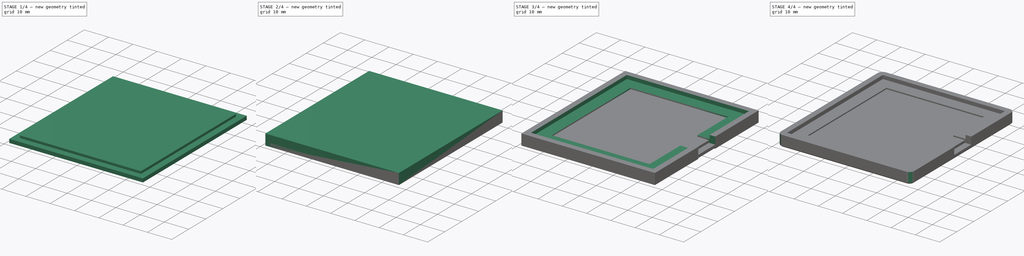
[diagram: build sequence overview — one tinted view per stage of 4, left to right]
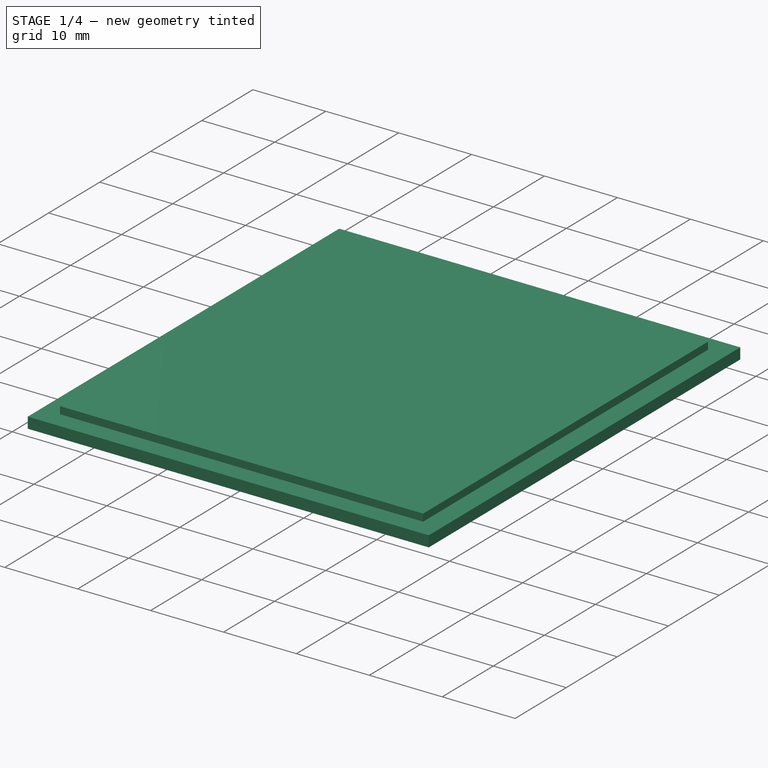
[diagram: stage 1 of 4 — iso view after this stage's code; geometry added in this stage tinted green]
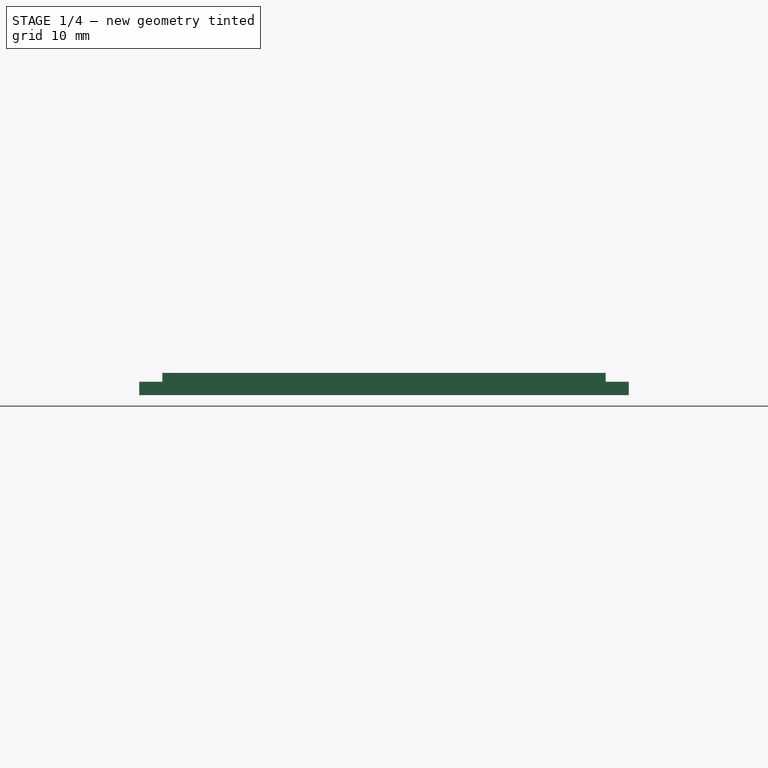
[diagram: stage 1 of 4 — front view after this stage's code; geometry added in this stage tinted green]
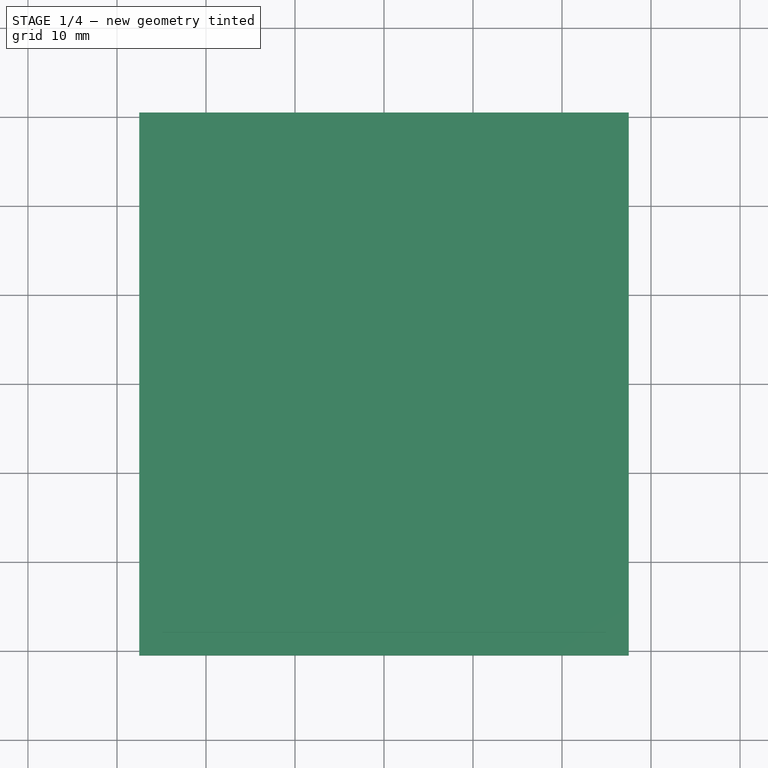
[diagram: stage 1 of 4 — top view after this stage's code; geometry added in this stage tinted green]
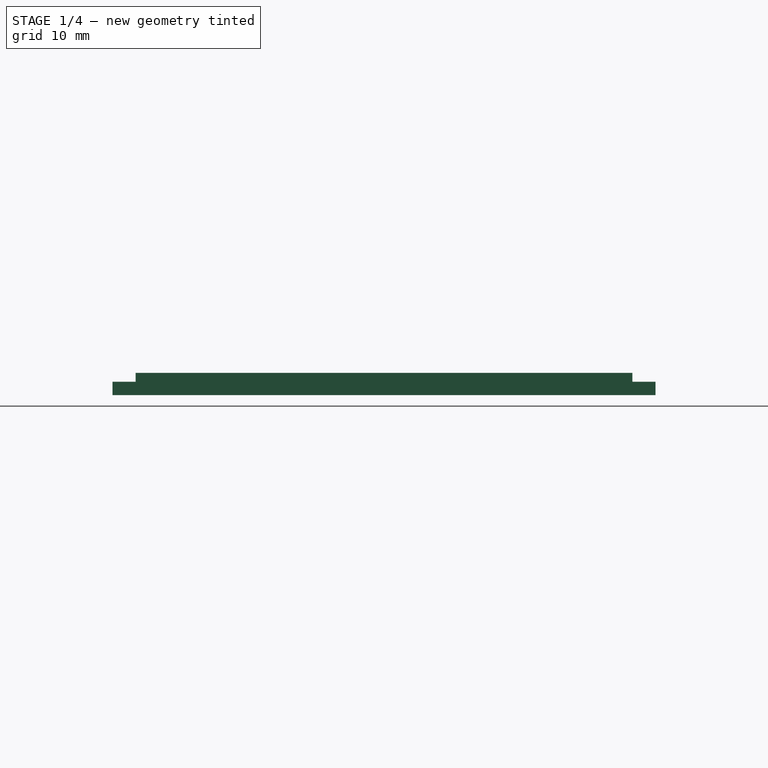
[diagram: stage 1 of 4 — right view after this stage's code; geometry added in this stage tinted green]
FCSTD DOCUMENT  (FreeCAD 0.21R33675 (Git))
Label: tencil-jig
License: All rights reserved
LicenseURL: http://en.wikipedia.org/wiki/All_rights_reserved
objects: Sketcher::SketchObject×6, PartDesign::Pad×3, PartDesign::Pocket×3, PartDesign::Fillet×2, PartDesign::Chamfer×2, PartDesign::Body×2, Spreadsheet::Sheet×1
note: 28 computed .brp shape members not serialized (recipe doc carries the construction recipe); baked Part::Feature solids carry a one-line shape summary decoded from their .brp

FEATURE [PartDesign::Body] Body  label="bottom"
  Group = -> [Sketch,Pad,Sketch001,Pocket,Sketch002,Pocket001,Sketch003,Pocket002,Fillet,Chamfer]
  Origin = -> Origin
  Tip = -> Chamfer
FEATURE [Sketcher::SketchObject] Sketch004
  FullyConstrained = true
  MapMode = 5
  Support = -> [XY_Plane001]
  expr: Constraints[10] = <<args>>.tencil_y + 5
  expr: Constraints[11] = (<<args>>.tencil_y + 5) / 2
  expr: Constraints[8] = <<args>>.tencil_x + 5
  expr: Constraints[9] = (<<args>>.tencil_x + 5) / 2
  sketch-geometry (4):
    g0: LineSegment StartX=-27.5 StartY=30.5 StartZ=0 EndX=27.5 EndY=30.5 EndZ=0
    g1: LineSegment StartX=27.5 StartY=30.5 StartZ=0 EndX=27.5 EndY=-30.5 EndZ=0
    g2: LineSegment StartX=27.5 StartY=-30.5 StartZ=0 EndX=-27.5 EndY=-30.5 EndZ=0
    g3: LineSegment StartX=-27.5 StartY=-30.5 StartZ=0 EndX=-27.5 EndY=30.5 EndZ=0
  constraints (12):
    c: Coincident(g0,g1)
    c: Coincident(g1,g2)
    c: Coincident(g2,g3)
    c: Coincident(g3,g0)
    c: Horizontal(g0)
    c: Horizontal(g2)
    c: Vertical(g1)
    c: Vertical(g3)
    c: DistanceX(g0,g0) = 55
    c: DistanceX(g0,g-1) = 27.5
    c: DistanceY(g1,g1) = 61
    c: DistanceY(g-1,g0) = 30.5
FEATURE [PartDesign::Pad] Pad001
  Direction = (0,0,1)
  Length = 1.5
  Length2 = 10
  Profile = -> Sketch004
  ReferenceAxis = -> Sketch004 [N_Axis]
  Type = 0
FEATURE [Sketcher::SketchObject] Sketch005
  FullyConstrained = true
  MapMode = 5
  Placement = pos=(0,0,1.5) rot=(0,0,1;0rad)
  Support = -> [Pad001]
  expr: Constraints[10] = <<args>>.tencil_y - 0.2
  expr: Constraints[11] = (<<args>>.tencil_y - 0.2) / 2
  expr: Constraints[8] = <<args>>.tencil_x - 0.2
  expr: Constraints[9] = (<<args>>.tencil_x - 0.2) / 2
  sketch-geometry (4):
    g0: LineSegment StartX=-24.9 StartY=27.9 StartZ=0 EndX=24.9 EndY=27.9 EndZ=0
    g1: LineSegment StartX=24.9 StartY=27.9 StartZ=0 EndX=24.9 EndY=-27.9 EndZ=0
    g2: LineSegment StartX=24.9 StartY=-27.9 StartZ=0 EndX=-24.9 EndY=-27.9 EndZ=0
    g3: LineSegment StartX=-24.9 StartY=-27.9 StartZ=0 EndX=-24.9 EndY=27.9 EndZ=0
  constraints (12):
    c: Coincident(g0,g1)
    c: Coincident(g1,g2)
    c: Coincident(g2,g3)
    c: Coincident(g3,g0)
    c: Horizontal(g0)
    c: Horizontal(g2)
    c: Vertical(g1)
    c: Vertical(g3)
    c: DistanceX(g0,g0) = 49.8
    c: DistanceX(g0,g-1) = 24.9
    c: DistanceY(g1,g1) = 55.8
    c: DistanceY(g-1,g0) = 27.9
FEATURE [PartDesign::Pad] Pad002
  BaseFeature = -> Pad001
  Direction = (0,0,1)
  Length = 1
  Length2 = 10
  Profile = -> Sketch005
  ReferenceAxis = -> Sketch005 [N_Axis]
  Type = 0
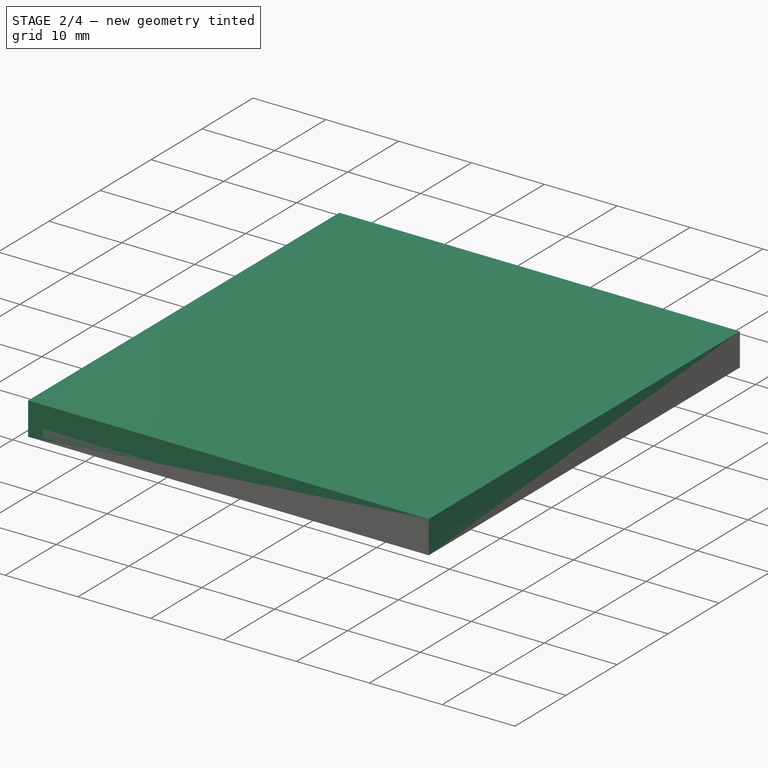
[diagram: stage 2 of 4 — iso view after this stage's code; geometry added in this stage tinted green]
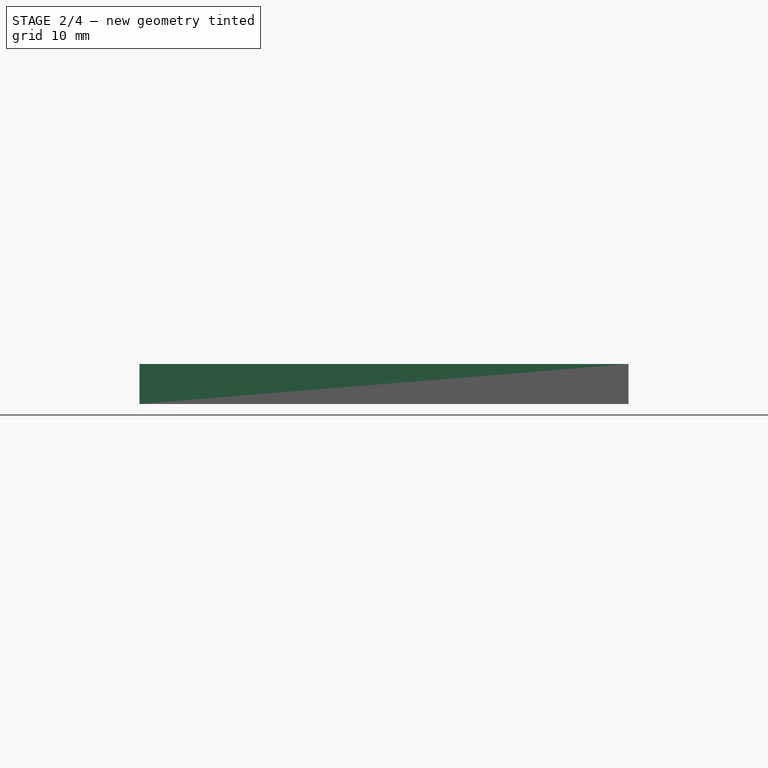
[diagram: stage 2 of 4 — front view after this stage's code; geometry added in this stage tinted green]
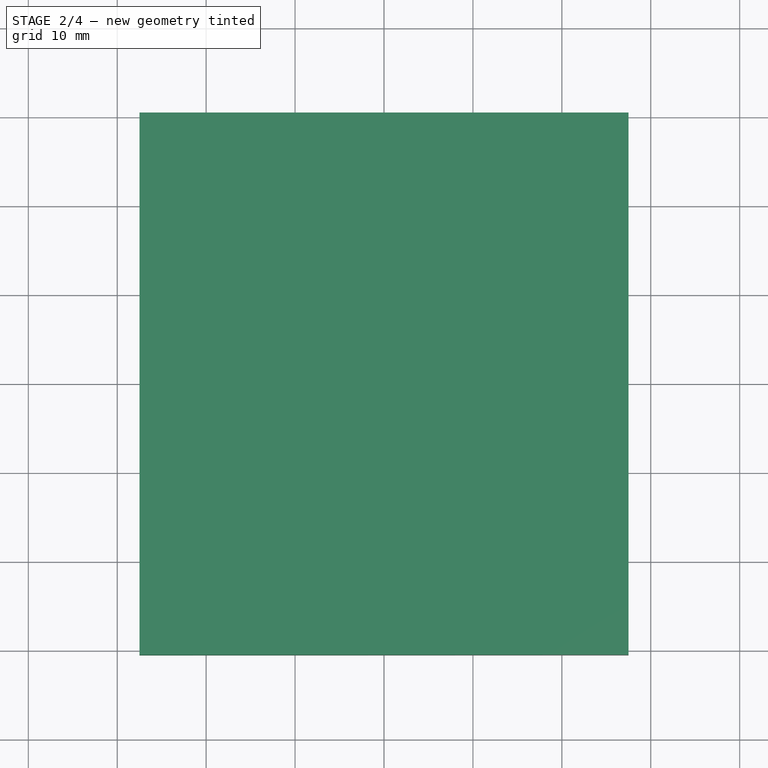
[diagram: stage 2 of 4 — top view after this stage's code; geometry added in this stage tinted green]
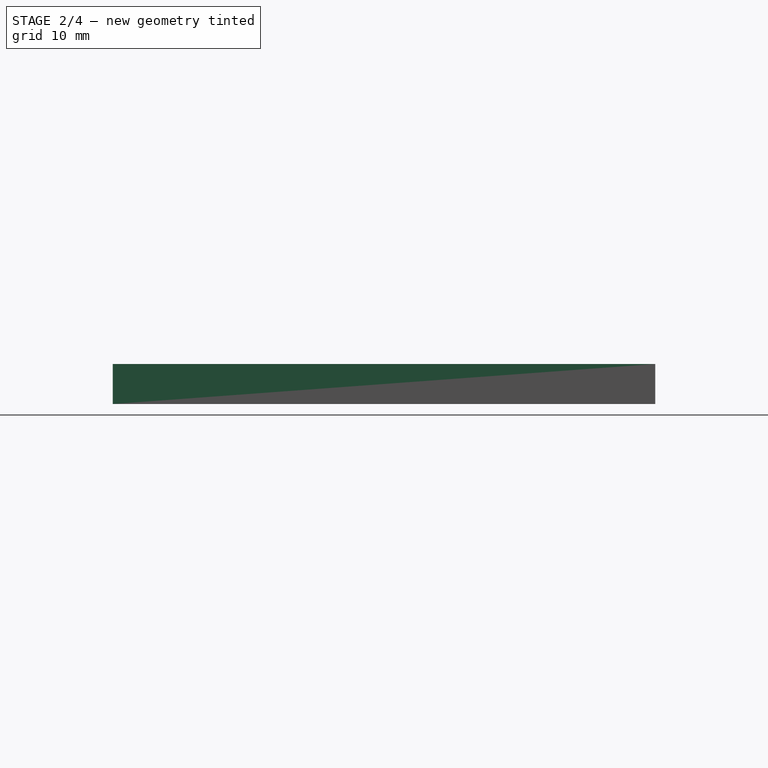
[diagram: stage 2 of 4 — right view after this stage's code; geometry added in this stage tinted green]
FEATURE [Spreadsheet::Sheet] Spreadsheet  label="args"
  cells = A3='tencil_x; B3(tencil_x)=50; A4='tencil_y; B4(tencil_y)=56; A5='tencil_offset; B5(tencil_offset)=0.3; A6='pcb_x; B6(pcb_x)=40; A7='pcb_y; B7(pcb_y)=46; A8='pcb_offset; B8(pcb_offset)=0.2; A9='cutout_radius; B9(cutout_radius)=5
FEATURE [Sketcher::SketchObject] Sketch
  FullyConstrained = true
  MapMode = 5
  Support = -> [XY_Plane]
  expr: Constraints[10] = <<args>>.tencil_y + 5
  expr: Constraints[11] = (<<args>>.tencil_y + 5) / 2
  expr: Constraints[8] = <<args>>.tencil_x + 5
  expr: Constraints[9] = (<<args>>.tencil_x + 5) / 2
  sketch-geometry (4):
    g0: LineSegment StartX=-27.5 StartY=30.5 StartZ=0 EndX=27.5 EndY=30.5 EndZ=0
    g1: LineSegment StartX=27.5 StartY=30.5 StartZ=0 EndX=27.5 EndY=-30.5 EndZ=0
    g2: LineSegment StartX=27.5 StartY=-30.5 StartZ=0 EndX=-27.5 EndY=-30.5 EndZ=0
    g3: LineSegment StartX=-27.5 StartY=-30.5 StartZ=0 EndX=-27.5 EndY=30.5 EndZ=0
  constraints (12):
    c: Coincident(g0,g1)
    c: Coincident(g1,g2)
    c: Coincident(g2,g3)
    c: Coincident(g3,g0)
    c: Horizontal(g0)
    c: Horizontal(g2)
    c: Vertical(g1)
    c: Vertical(g3)
    c: DistanceX(g0,g0) = 55
    c: DistanceX(g0,g-1) = 27.5
    c: DistanceY(g3,g3) = 61
    c: DistanceY(g-1,g0) = 30.5
FEATURE [PartDesign::Pad] Pad
  Direction = (0,0,1)
  Length = 4.5
  Length2 = 10
  Profile = -> Sketch
  ReferenceAxis = -> Sketch [N_Axis]
  Type = 0
FEATURE [PartDesign::Fillet] Fillet001
  Base = -> Pad002 [Edge5,Edge17,Edge20,Edge8,Edge22,Edge2,Edge18,Edge1]
  BaseFeature = -> Pad002
  Radius = 2
  SupportTransform = false
  UseAllEdges = false
FEATURE [PartDesign::Chamfer] Chamfer001
  Angle = 45
  Base = -> Fillet001 [Face2]
  BaseFeature = -> Fillet001
  ChamferType = 0
  FlipDirection = false
  Size = 0.4
  Size2 = 1
  SupportTransform = false
  UseAllEdges = false
FEATURE [PartDesign::Body] Body001  label="top"
  Group = -> [Sketch004,Pad001,Sketch005,Pad002,Fillet001,Chamfer001]
  Origin = -> Origin001
  Placement = pos=(0,0,25.5) rot=(0,0,1;0rad)
  Tip = -> Chamfer001
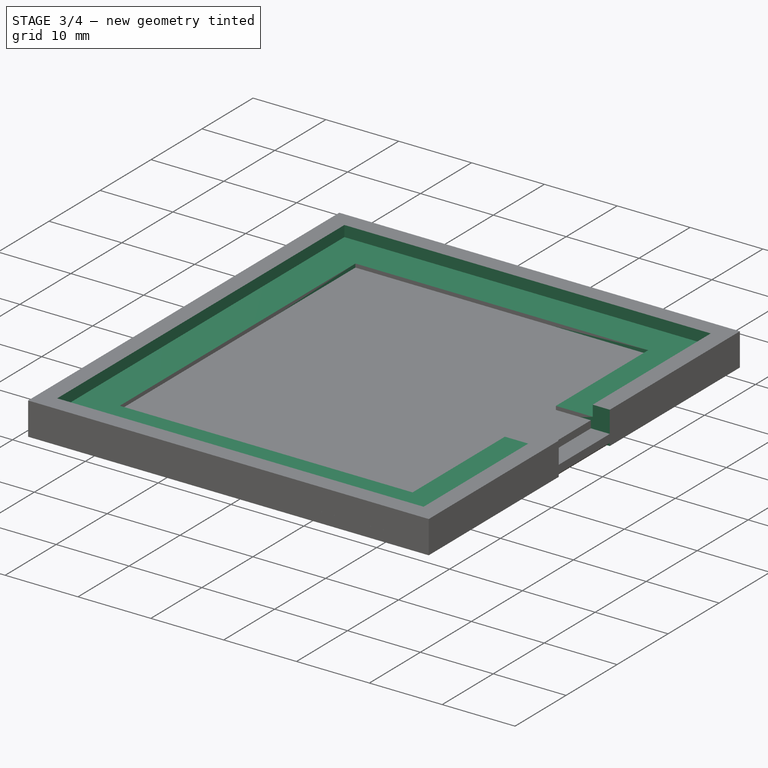
[diagram: stage 3 of 4 — iso view after this stage's code; geometry added in this stage tinted green]
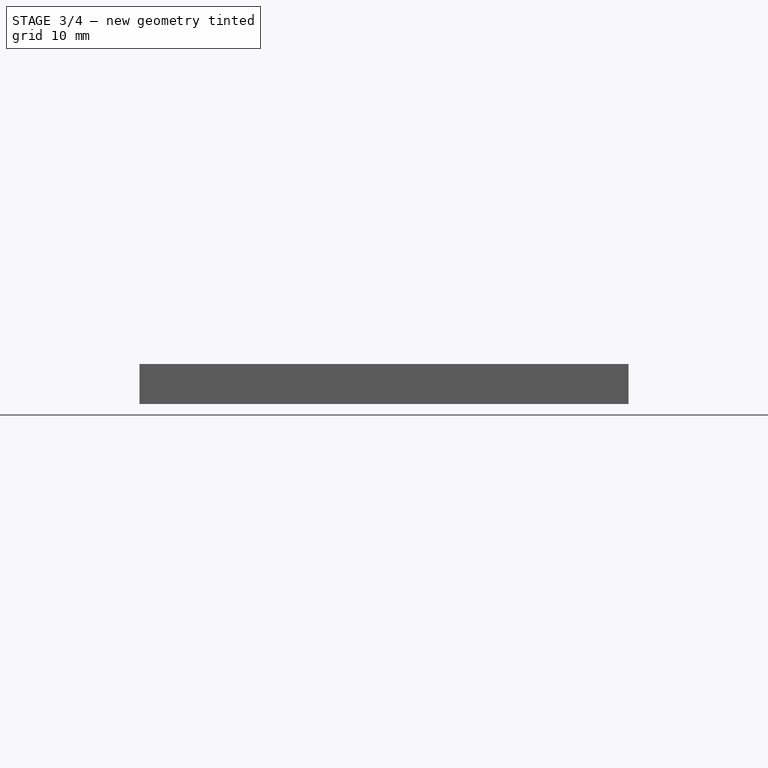
[diagram: stage 3 of 4 — front view after this stage's code; geometry added in this stage tinted green]
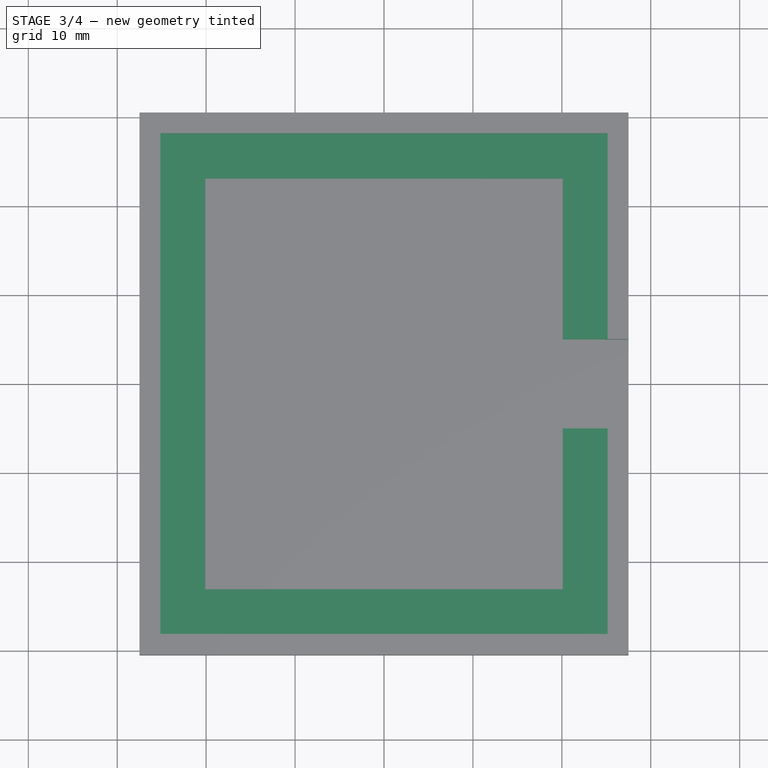
[diagram: stage 3 of 4 — top view after this stage's code; geometry added in this stage tinted green]
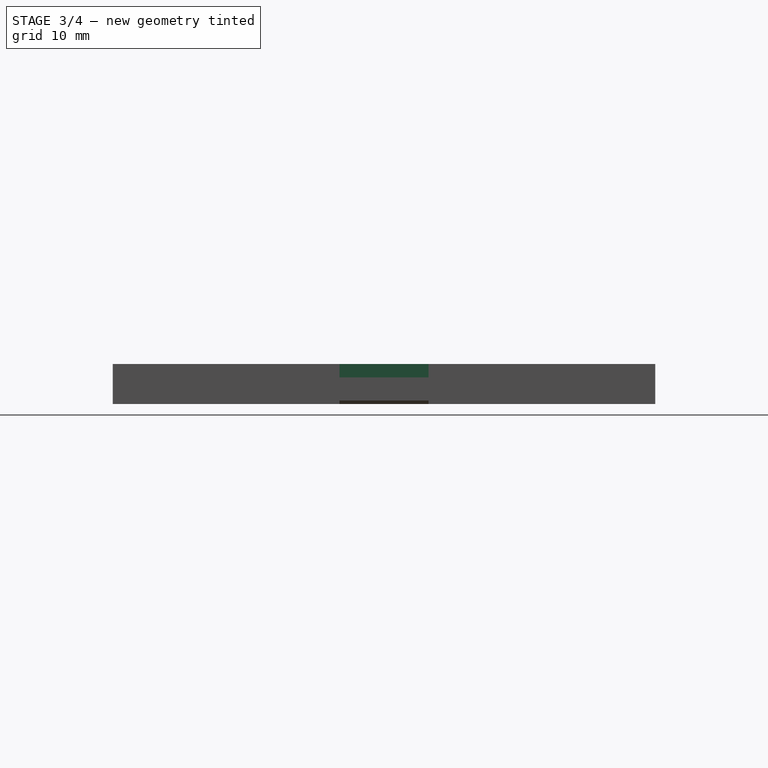
[diagram: stage 3 of 4 — right view after this stage's code; geometry added in this stage tinted green]
FEATURE [Sketcher::SketchObject] Sketch001
  FullyConstrained = true
  MapMode = 5
  Placement = pos=(0,0,4.5) rot=(0,0,1;0rad)
  Support = -> [Pad]
  expr: Constraints[10] = <<args>>.tencil_y + <<args>>.tencil_offset
  expr: Constraints[11] = (<<args>>.tencil_y + <<args>>.tencil_offset) / 2
  expr: Constraints[8] = <<args>>.tencil_x + <<args>>.tencil_offset
  expr: Constraints[9] = (<<args>>.tencil_x + <<args>>.tencil_offset) / 2
  sketch-geometry (4):
    g0: LineSegment StartX=-25.15 StartY=28.15 StartZ=0 EndX=25.15 EndY=28.15 EndZ=0
    g1: LineSegment StartX=25.15 StartY=28.15 StartZ=0 EndX=25.15 EndY=-28.15 EndZ=0
    g2: LineSegment StartX=25.15 StartY=-28.15 StartZ=0 EndX=-25.15 EndY=-28.15 EndZ=0
    g3: LineSegment StartX=-25.15 StartY=-28.15 StartZ=0 EndX=-25.15 EndY=28.15 EndZ=0
  constraints (12):
    c: Coincident(g0,g1)
    c: Coincident(g1,g2)
    c: Coincident(g2,g3)
    c: Coincident(g3,g0)
    c: Horizontal(g0)
    c: Horizontal(g2)
    c: Vertical(g1)
    c: Vertical(g3)
    c: DistanceX(g0,g0) = 50.3
    c: DistanceX(g0,g-1) = 25.15
    c: DistanceY(g1,g1) = 56.3
    c: DistanceY(g-1,g0) = 28.15
FEATURE [PartDesign::Pocket] Pocket
  BaseFeature = -> Pad
  Direction = (0,0,-1)
  Length = 1.5
  Length2 = 5
  Profile = -> Sketch001
  ReferenceAxis = -> Sketch001 [N_Axis]
  Type = 0
FEATURE [Sketcher::SketchObject] Sketch002
  FullyConstrained = true
  MapMode = 5
  Placement = pos=(0,0,3) rot=(0,0,1;0rad)
  Support = -> [Pocket]
  expr: Constraints[10] = <<args>>.pcb_y + <<args>>.pcb_offset
  expr: Constraints[11] = (<<args>>.pcb_y + <<args>>.pcb_offset) / 2
  expr: Constraints[8] = <<args>>.pcb_x + <<args>>.pcb_offset
  expr: Constraints[9] = (<<args>>.pcb_x + <<args>>.pcb_offset) / 2
  sketch-geometry (4):
    g0: LineSegment StartX=-20.1 StartY=23.1 StartZ=0 EndX=20.1 EndY=23.1 EndZ=0
    g1: LineSegment StartX=20.1 StartY=23.1 StartZ=0 EndX=20.1 EndY=-23.1 EndZ=0
    g2: LineSegment StartX=20.1 StartY=-23.1 StartZ=0 EndX=-20.1 EndY=-23.1 EndZ=0
    g3: LineSegment StartX=-20.1 StartY=-23.1 StartZ=0 EndX=-20.1 EndY=23.1 EndZ=0
  constraints (12):
    c: Coincident(g0,g1)
    c: Coincident(g1,g2)
    c: Coincident(g2,g3)
    c: Coincident(g3,g0)
    c: Horizontal(g0)
    c: Horizontal(g2)
    c: Vertical(g1)
    c: Vertical(g3)
    c: DistanceX(g0,g0) = 40.2
    c: DistanceX(g0,g-1) = 20.1
    c: DistanceY(g3,g3) = 46.2
    c: DistanceY(g-1,g0) = 23.1
FEATURE [PartDesign::Pocket] Pocket001
  BaseFeature = -> Pocket
  Direction = (0,0,-1)
  Length = 1.5
  Length2 = 5
  Profile = -> Sketch002
  ReferenceAxis = -> Sketch002 [N_Axis]
  Type = 0
FEATURE [Sketcher::SketchObject] Sketch003
  FullyConstrained = true
  MapMode = 5
  Placement = pos=(0,0,4.5) rot=(0,0,1;0rad)
  Support = -> [Pocket001]
  expr: Constraints[7] = <<args>>.pcb_x / 2
  expr: Constraints[8] = <<args>>.tencil_x / 2 + 10
  expr: Constraints[9] = <<args>>.cutout_radius
  sketch-geometry (4):
    g0: ArcOfCircle CenterX=20 CenterY=0 CenterZ=0 NormalX=0 NormalY=0 NormalZ=1 AngleXU=0 Radius=5 StartAngle=1.5708 EndAngle=4.71239
    g1: ArcOfCircle CenterX=35 CenterY=0 CenterZ=0 NormalX=0 NormalY=0 NormalZ=1 AngleXU=0 Radius=5 StartAngle=4.71239 EndAngle=7.85398
    g2: LineSegment StartX=20 StartY=-5 StartZ=0 EndX=35 EndY=-5 EndZ=0
    g3: LineSegment StartX=35 StartY=5 StartZ=0 EndX=20 EndY=5 EndZ=0
  constraints (10):
    c: Tangent(g0,g2) = -1.5708
    c: Tangent(g2,g1) = -1.5708
    c: Tangent(g1,g3) = -1.5708
    c: Tangent(g3,g0) = -1.5708
    c: Equal(g0,g1)
    c: PointOnObject(g0,g-1)
    c: PointOnObject(g1,g-1)
    c: DistanceX(g-1,g0) = 20
    c: DistanceX(g-1,g1) = 35
    c: Radius(g0) = 5
FEATURE [PartDesign::Pocket] Pocket002
  BaseFeature = -> Pocket001
  Direction = (0,0,-1)
  Length = 5
  Length2 = 5
  Profile = -> Sketch003
  ReferenceAxis = -> Sketch003 [N_Axis]
  Type = 1
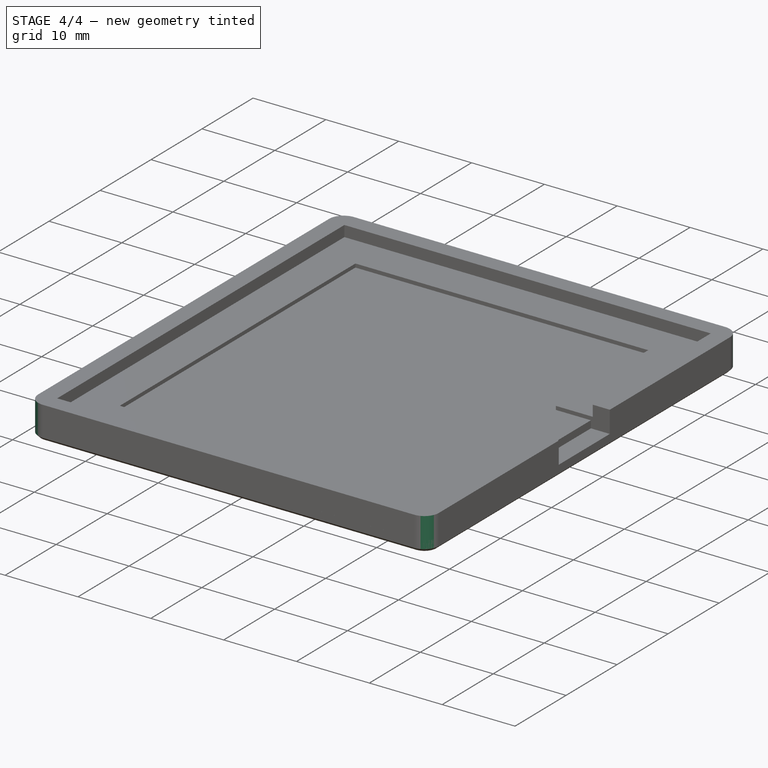
[diagram: stage 4 of 4 — iso view after this stage's code; geometry added in this stage tinted green]
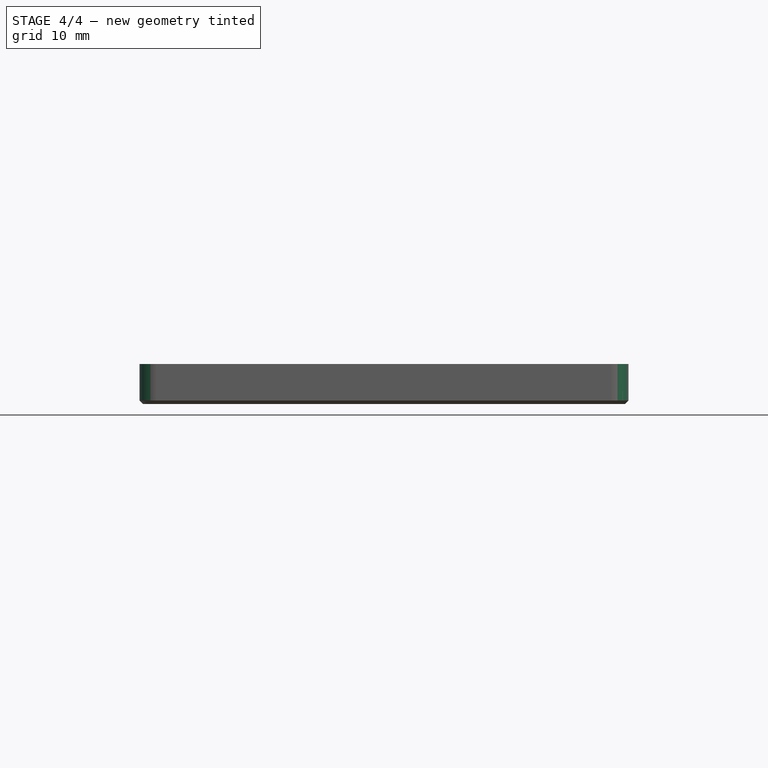
[diagram: stage 4 of 4 — front view after this stage's code; geometry added in this stage tinted green]
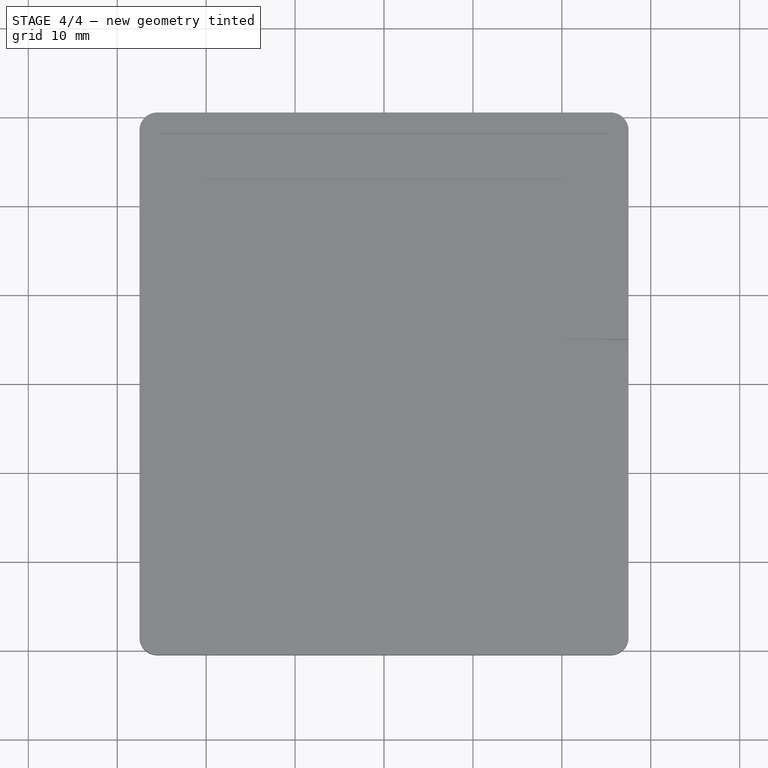
[diagram: stage 4 of 4 — top view after this stage's code; geometry added in this stage tinted green]
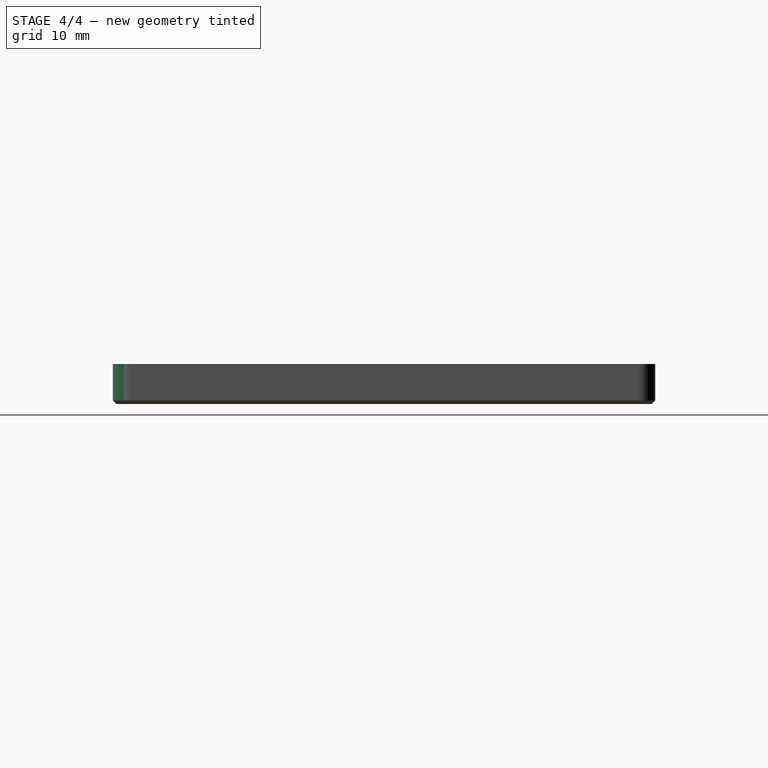
[diagram: stage 4 of 4 — right view after this stage's code; geometry added in this stage tinted green]
FEATURE [PartDesign::Fillet] Fillet
  Base = -> Pocket002 [Edge5,Edge25,Edge2,Edge1]
  BaseFeature = -> Pocket002
  Radius = 2
  SupportTransform = false
  UseAllEdges = false
FEATURE [PartDesign::Chamfer] Chamfer
  Angle = 45
  Base = -> Fillet [Face2]
  BaseFeature = -> Fillet
  ChamferType = 0
  FlipDirection = false
  Size = 0.4
  Size2 = 1
  SupportTransform = false
  UseAllEdges = false
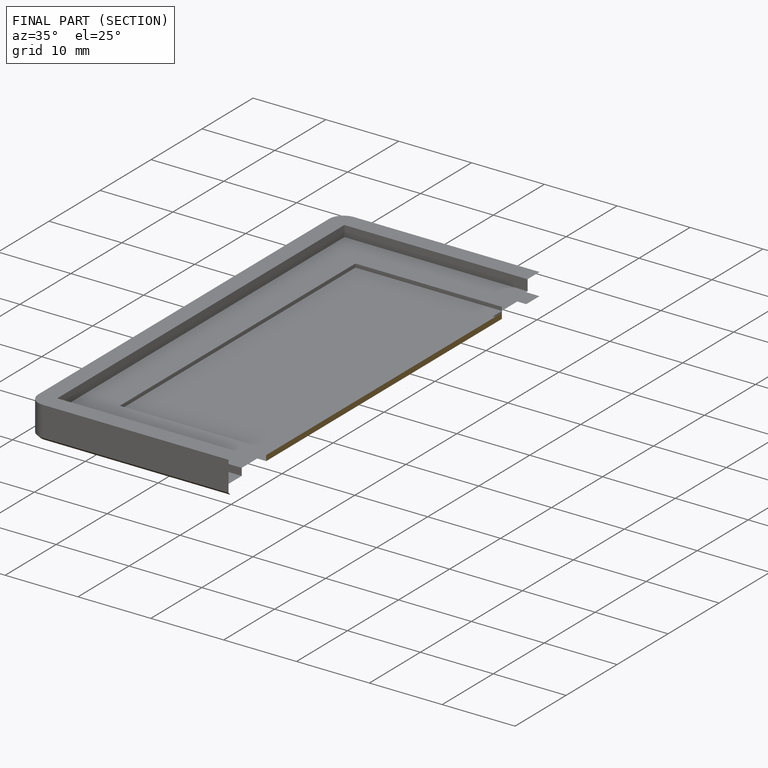
[diagram: finished part — half-section view (interior)]
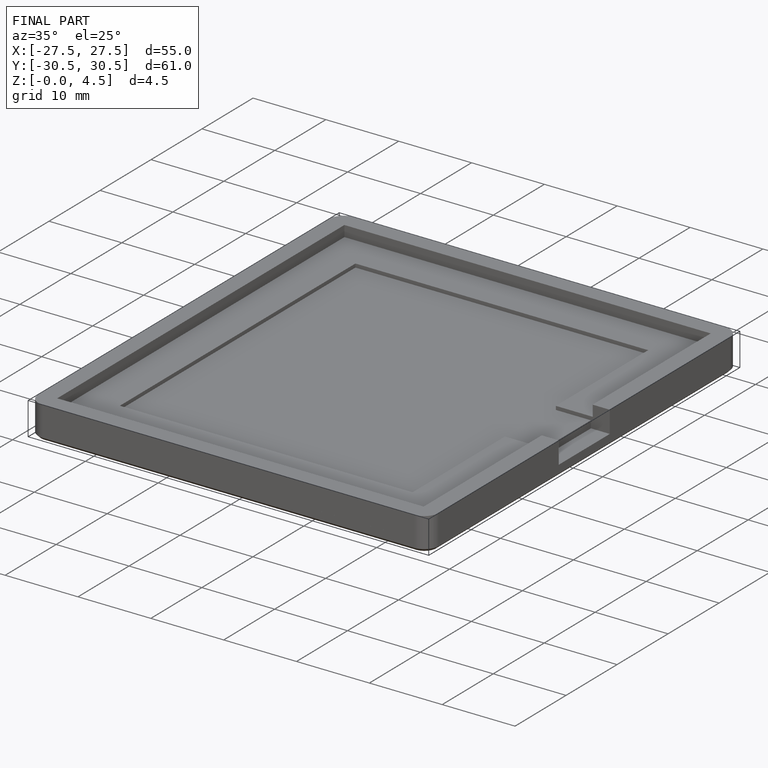
[diagram: finished part — iso view with bounding-box wireframe]
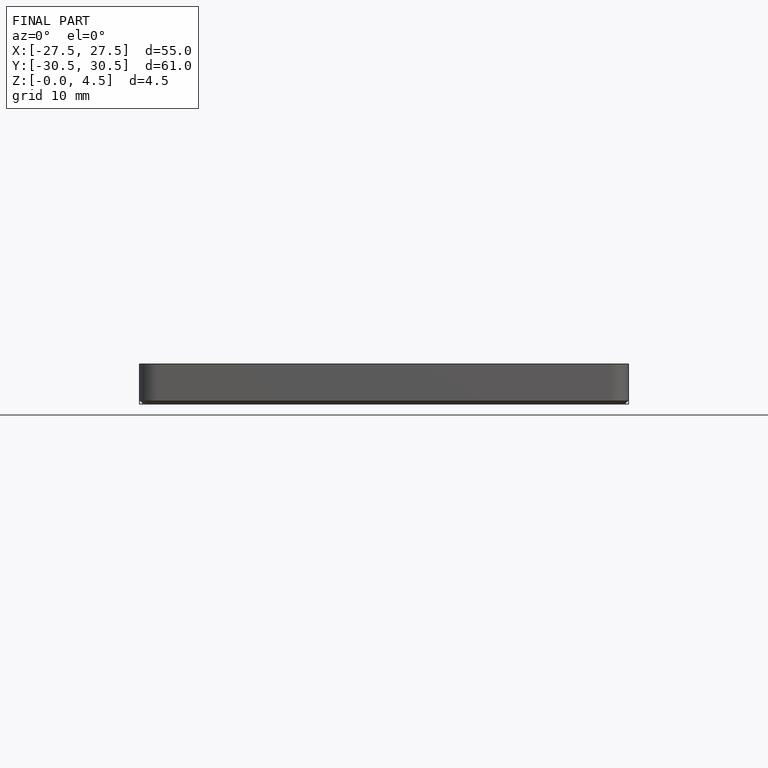
[diagram: finished part — front view with bounding-box wireframe]
